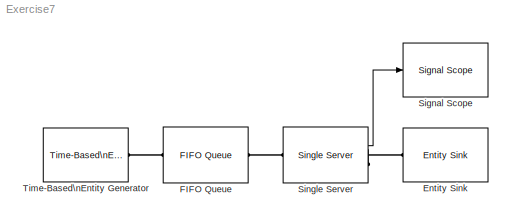
MODEL Exercise7
KIND model
BLOCK [Reference] Entity Sink  REF=simeventssink1/Entity Sink
  AvailableForArrivals = on
  FunctionWithSeparateData = off
  Ports = [0, 0, 0, 0, 0, 1]
  Priority = 1
  RTWMemSecDataConstants = Inherit from model
  RTWMemSecDataInternal = Inherit from model
  RTWMemSecDataParameters = Inherit from model
  RTWMemSecFuncExecute = Inherit from model
  RTWMemSecFuncInitTerm = Inherit from model
  ShowPortLabels = FromPortIcon
  SourceBlock = simeventssink1/Entity Sink
  SourceType = Entity Sink
  StatNumberArrived = Off
  SystemSampleTime = -1
  UserData = DataTag0
  UserDataPersistent = on
BLOCK [Reference] FIFO Queue  REF=simeventsqueue1/FIFO Queue
  Capacity = Inf
  EnableTOPort = off
  FunctionWithSeparateData = off
  Ports = [0, 0, 0, 0, 0, 1, 1]
  Priority = 1
  RTWMemSecDataConstants = Inherit from model
  RTWMemSecDataInternal = Inherit from model
  RTWMemSecDataParameters = Inherit from model
  RTWMemSecFuncExecute = Inherit from model
  RTWMemSecFuncInitTerm = Inherit from model
  ShowPortLabels = FromPortIcon
  SourceBlock = simeventsqueue1/FIFO Queue
  SourceType = FIFO Queue
  StatAverageQueueLength = Off
  StatAverageWait = Off
  StatNumberDeparted = Off
  StatNumberInBlock = Off
  StatNumberTimedout = Off
  StatPendingEntity = Off
  SystemSampleTime = -1
  UserData = DataTag1
  UserDataPersistent = on
BLOCK [Reference] Signal Scope  REF=simeventssink1/Signal Scope
  AttributeNameX = Count
  AttributeNameY = Count
  AxisGrid = on
  AxisLegend = off
  AxisZoom = off
  DataPointsLimit = 10000
  DataStoreOption = Limited
  EnableEntityOutport = on
  FigurePosition = des_figposition([5 60 25 25])
  FunctionWithSeparateData = off
  InputType = Signal
  LineColors = b
  LineMarkers = .
  LineStyles = -
  NumInputs = 1
  OpenScopeAtSimStart = on
  PlotType = Stair
  Ports = [1]
  Priority = 1
  RTWMemSecDataConstants = Inherit from model
  RTWMemSecDataInternal = Inherit from model
  RTWMemSecDataParameters = Inherit from model
  RTWMemSecFuncExecute = Inherit from model
  RTWMemSecFuncInitTerm = Inherit from model
  ShowCountPlotted = off
  ShowPortLabels = FromPortIcon
  ShowToolbar = on
  SourceBlock = simeventssink1/Signal Scope
  SourceType = Signal Scope
  StatNumberArrived = Off
  SystemSampleTime = -1
  UserData = DataTag2
  UserDataPersistent = on
  XInputOptionEntity = Event time
  XInputOptionSignal = Event time
  XLabel = Time
  XLimitExceededOption = Stretch axis limits
  XMax = 10
  XMin = 0
  YLimitExceededOption = Stretch axis limits
  YMax = 10
  YMin = 0
BLOCK [Reference] Single Server  REF=simeventsserver1/Single Server
  AttributeName = ServiceTime
  CreateAttribute = on
  EnableTOPort = off
  FunctionWithSeparateData = off
  PermitPreemption = off
  Ports = [0, 1, 0, 0, 0, 1, 1]
  Priority = 1
  PriorityServiceCompletion = 500
  RTWMemSecDataConstants = Inherit from model
  RTWMemSecDataInternal = Inherit from model
  RTWMemSecDataParameters = Inherit from model
  RTWMemSecFuncExecute = Inherit from model
  RTWMemSecFuncInitTerm = Inherit from model
  ResidualAttributeName = ResidualServiceTime
  ServiceTime = 1
  ServiceTimeFrom = Dialog
  ShowPortLabels = FromPortIcon
  SortingAttributeName = PriorityAttributeName
  SortingDirection = Ascending
  SourceBlock = simeventsserver1/Single Server
  SourceType = Single Server
  StatAverageWait = Off
  StatNumberDeparted = On
  StatNumberInBlock = Off
  StatNumberPreempted = Off
  StatNumberTimedout = Off
  StatPendingEntity = Off
  StatUtilization = Off
  SystemSampleTime = -1
  UserData = DataTag3
  UserDataPersistent = on
  WriteToAttribute = off
BLOCK [Reference] Time-Based\nEntity Generator  REF=simeventsgenerators1/Entity Generators/Time-Based\nEntity Generator
  DialogController = des_ddg_create
  DialogControllerArgs = DataTag5
  Distribution = Constant
  EntityType = Blank
  FunctionWithSeparateData = off
  GenerateEntitiesUpon = Intergeneration time from dialog
  GenerateEntityAtSimulationStart = on
  InitialSeed = 12345
  Maximum = 1
  Mean = 1
  Minimum = 0
  Period = 1
  Ports = [0, 0, 0, 0, 0, 0, 1]
  Priority = 1
  PriorityEntityGeneration = 300
  RTWMemSecDataConstants = Inherit from model
  RTWMemSecDataInternal = Inherit from model
  RTWMemSecDataParameters = Inherit from model
  RTWMemSecFuncExecute = Inherit from model
  RTWMemSecFuncInitTerm = Inherit from model
  ResponseWhenBlocked = Pause generation
  ResponseWhenUnblocked = Immediate restart
  ShowPortLabels = FromPortIcon
  SourceBlock = simeventsgenerators1/Entity Generators/Time-Based\nEntity Generator
  SourceType = Time-Based Entity Generator
  StatAverageIntergenerationTime = Off
  StatNumberDeparted = Off
  StatPendingEntity = Off
  SystemSampleTime = -1
  UserData = DataTag4
  UserDataPersistent = on
LINE Single Server:1 -> Signal Scope:1
PLINE Entity Sink:LConn1 -- Single Server:RConn1
PLINE FIFO Queue:LConn1 -- Time-Based\nEntity Generator:RConn1
PLINE FIFO Queue:RConn1 -- Single Server:LConn1
